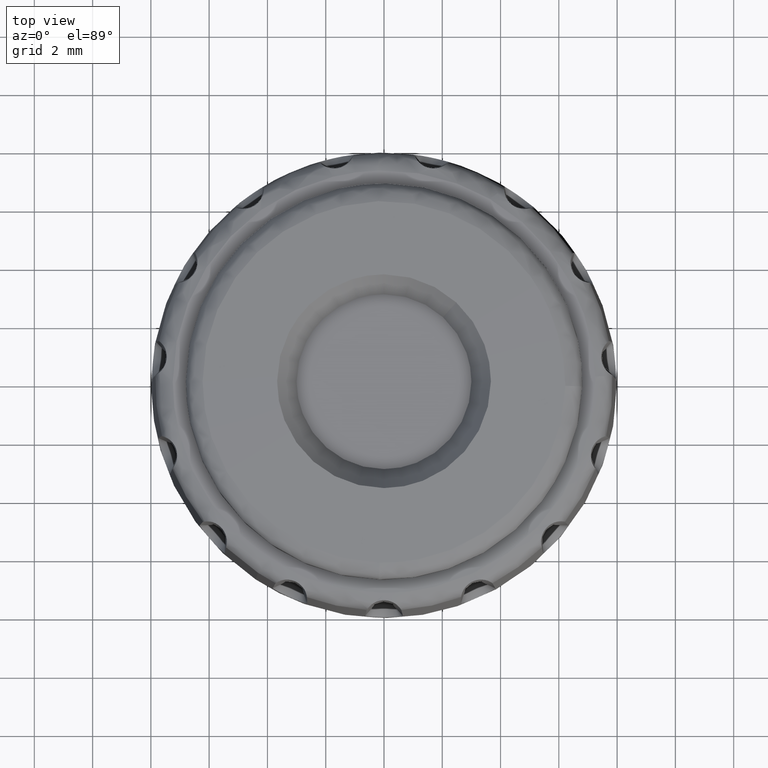
[diagram: clean part render]
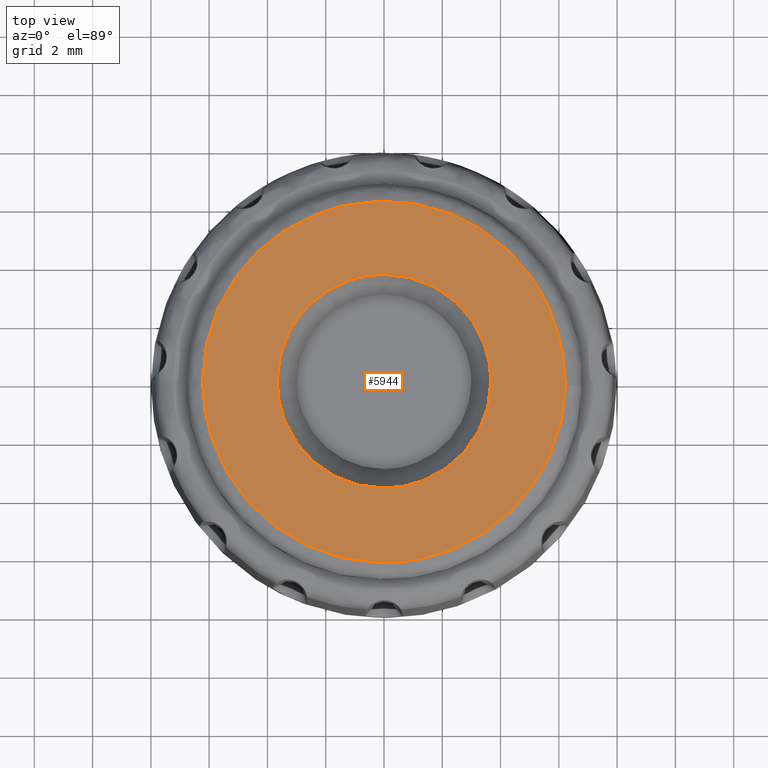
[diagram: same view with one face highlighted and labeled with its STEP entity id]
A machine part, top view. The second image highlights one B-rep face of the part: STEP entity #5944.
In plain terms, the highlighted face is a freeform B-spline surface patch.
Its self-contained STEP definition (entity closure, byte-faithful):
#855=CARTESIAN_POINT('',(-2.558729368442249,2.629239710195736,10.955126598046670));
#856=VERTEX_POINT('',#855);
#862=CARTESIAN_POINT('',(-3.668787000000000,0.0,10.955126627763660));
#863=VERTEX_POINT('',#862);
#864=CARTESIAN_POINT('',(-3.668787000000000,0.0,10.955126627763660));
#865=CARTESIAN_POINT('',(-3.668796314273598,0.183207690379415,10.955126625692920));
#866=CARTESIAN_POINT('',(-3.640142203927413,0.564888915226439,10.955126621379049));
#867=CARTESIAN_POINT('',(-3.519179570670492,1.079313527119712,10.955126615564810));
#868=CARTESIAN_POINT('',(-3.338767566305369,1.542476770300644,10.955126610329661));
#869=CARTESIAN_POINT('',(-3.056386048654440,2.068006213917218,10.955126604390150));
#870=CARTESIAN_POINT('',(-2.772138523245196,2.421649582247328,10.955126600392910));
#871=CARTESIAN_POINT('',(-2.558729368442249,2.629239710195736,10.955126598046670));
#872=B_SPLINE_CURVE_WITH_KNOTS('',3,(#864,#865,#866,#867,#868,#869,#870,#871),.UNSPECIFIED.,.F.,.U.,(4,1,1,1,1,4),(3.287222E-009,0.549623135697037,1.145049400840036,1.580163922134581,2.038185540466906,2.931323173761657),.UNSPECIFIED.);
#873=EDGE_CURVE('',#863,#856,#872,.T.);
#875=CARTESIAN_POINT('',(-0.000000253086721,-3.668786999999991,10.955126627763660));
#876=VERTEX_POINT('',#875);
#877=CARTESIAN_POINT('',(-0.000000253086721,-3.668786999999991,10.955126627763660));
#878=CARTESIAN_POINT('',(-0.150074253330359,-3.668790672883966,10.955126627763670));
#879=CARTESIAN_POINT('',(-0.465233631023567,-3.649426425733436,10.955126627763640));
#880=CARTESIAN_POINT('',(-0.908346585422596,-3.564105307968374,10.955126627763731));
#881=CARTESIAN_POINT('',(-1.430333908644830,-3.395240281615239,10.955126627763560));
#882=CARTESIAN_POINT('',(-1.914637579217418,-3.149593821998164,10.955126627763759));
#883=CARTESIAN_POINT('',(-2.404950311509681,-2.788253567985518,10.955126627763629));
#884=CARTESIAN_POINT('',(-2.821521076519567,-2.374253071393121,10.955126627763709));
#885=CARTESIAN_POINT('',(-3.155627896872490,-1.899855293302906,10.955126627763750));
#886=CARTESIAN_POINT('',(-3.426078726975972,-1.354244990284643,10.955126627763491));
#887=CARTESIAN_POINT('',(-3.617709160590268,-0.742863637697796,10.955126627763910));
#888=CARTESIAN_POINT('',(-3.668821238783093,-0.255130236077244,10.955126627763590));
#889=CARTESIAN_POINT('',(-3.668787000000000,0.0,10.955126627763660));
#890=B_SPLINE_CURVE_WITH_KNOTS('',3,(#877,#878,#879,#880,#881,#882,#883,#884,#885,#886,#887,#888,#889),.UNSPECIFIED.,.F.,.U.,(4,1,1,1,1,1,1,1,1,1,4),(0.000000012398077,0.450222670899482,0.945479919587009,1.350685525418148,2.093565757266277,2.566303774648466,3.174106146020960,3.849454175856954,4.299682986823800,4.997541529064630,5.762926041093365),.UNSPECIFIED.);
#891=EDGE_CURVE('',#876,#863,#890,.T.);
#893=CARTESIAN_POINT('',(3.668787000000000,0.0,10.955126627763660));
#894=VERTEX_POINT('',#893);
#895=CARTESIAN_POINT('',(3.668787000000000,0.0,10.955126627763660));
#896=CARTESIAN_POINT('',(3.668814323694762,-0.232618779341579,10.955126627763629));
#897=CARTESIAN_POINT('',(3.631546560145285,-0.622804844325909,10.955126627763789));
#898=CARTESIAN_POINT('',(3.500843924060500,-1.124910376948884,10.955126627763599));
#899=CARTESIAN_POINT('',(3.326404284826933,-1.573057315246687,10.955126627763461));
#900=CARTESIAN_POINT('',(3.115877764746147,-1.955554149086997,10.955126627764139));
#901=CARTESIAN_POINT('',(2.841889398146539,-2.332161507697303,10.955126627763340));
#902=CARTESIAN_POINT('',(2.502436002097874,-2.704434779173230,10.955126627763949));
#903=CARTESIAN_POINT('',(2.095374772961913,-3.028170517214256,10.955126627763510));
#904=CARTESIAN_POINT('',(1.607604879900126,-3.310443393275139,10.955126627763800));
#905=CARTESIAN_POINT('',(1.140935476101188,-3.502070886148074,10.955126627763329));
#906=CARTESIAN_POINT('',(0.577786367985983,-3.637625790877836,10.955126627764500));
#907=CARTESIAN_POINT('',(0.202602996852965,-3.668803636449066,10.955126627762221));
#908=CARTESIAN_POINT('',(-0.000000253086721,-3.668786999999991,10.955126627763660));
#909=B_SPLINE_CURVE_WITH_KNOTS('',3,(#895,#896,#897,#898,#899,#900,#901,#902,#903,#904,#905,#906,#907,#908),.UNSPECIFIED.,.F.,.U.,(4,1,1,1,1,1,1,1,1,1,1,4),(0.000000012380162,0.697851070513664,1.170593287485914,1.553289214359196,2.138586581445682,2.476263587876066,2.948995092178373,3.646847719276117,4.029545937002878,4.637356576671634,5.155119120067665,5.762926326381514),.UNSPECIFIED.);
#910=EDGE_CURVE('',#894,#876,#909,.T.);
#912=CARTESIAN_POINT('',(2.478596627620115,2.704913570443459,10.955126657378511));
#913=VERTEX_POINT('',#912);
#914=CARTESIAN_POINT('',(2.478596627620115,2.704913570443459,10.955126657378511));
#915=CARTESIAN_POINT('',(2.700568686252443,2.501623246935369,10.955126655152810));
#916=CARTESIAN_POINT('',(2.974887743093795,2.179673978551685,10.955126651627870));
#917=CARTESIAN_POINT('',(3.281793590638063,1.660984697162141,10.955126645949059));
#918=CARTESIAN_POINT('',(3.504120535305149,1.151377766319385,10.955126640369411));
#919=CARTESIAN_POINT('',(3.642096269305816,0.570292939613688,10.955126634007740));
#920=CARTESIAN_POINT('',(3.668787897011517,0.158412555311694,10.955126629497910));
#921=CARTESIAN_POINT('',(3.668787000000000,0.0,10.955126627763660));
#922=B_SPLINE_CURVE_WITH_KNOTS('',3,(#914,#915,#916,#917,#918,#919,#920,#921),.UNSPECIFIED.,.F.,.U.,(4,1,1,1,1,4),(3.693007E-009,0.902958892960242,1.259391948735823,1.805916281795649,2.566304422388210,3.041544954333785),.UNSPECIFIED.);
#923=EDGE_CURVE('',#913,#894,#922,.T.);
#1019=CARTESIAN_POINT('',(0.000000253086766,3.668786999999991,10.955126627763660));
#1020=VERTEX_POINT('',#1019);
#1021=CARTESIAN_POINT('',(0.000000253086766,3.668786999999991,10.955126627763660));
#1022=CARTESIAN_POINT('',(0.184260082535565,3.668795230222630,10.955126629965230));
#1023=CARTESIAN_POINT('',(0.574039797798683,3.639365350323447,10.955126634622429));
#1024=CARTESIAN_POINT('',(1.182741671175913,3.493847921826963,10.955126641895340));
#1025=CARTESIAN_POINT('',(1.847471641502393,3.201495027786606,10.955126649837680));
#1026=CARTESIAN_POINT('',(2.269631043293864,2.896472847193216,10.955126654881751));
#1027=CARTESIAN_POINT('',(2.478596627620115,2.704913570443459,10.955126657378511));
#1028=B_SPLINE_CURVE_WITH_KNOTS('',3,(#1021,#1022,#1023,#1024,#1025,#1026,#1027),.UNSPECIFIED.,.F.,.U.,(4,1,1,1,4),(2.757743E-009,0.552779893470970,1.169346180678266,1.870948759456739,2.721381125809309),.UNSPECIFIED.);
#1029=EDGE_CURVE('',#1020,#913,#1028,.T.);
#1031=CARTESIAN_POINT('',(-2.558729368442249,2.629239710195736,10.955126598046670));
#1032=CARTESIAN_POINT('',(-2.437189540218109,2.747530125751104,10.955126599458220));
#1033=CARTESIAN_POINT('',(-2.205871345602524,2.943328480580930,10.955126602144810));
#1034=CARTESIAN_POINT('',(-1.822600413465111,3.193804090119309,10.955126606595989));
#1035=CARTESIAN_POINT('',(-1.346224094016909,3.430622669587101,10.955126612128710));
#1036=CARTESIAN_POINT('',(-0.730013175774520,3.620200288120393,10.955126619285229));
#1037=CARTESIAN_POINT('',(-0.243341598208492,3.668812151646920,10.955126624937529));
#1038=CARTESIAN_POINT('',(0.000000253086766,3.668786999999991,10.955126627763660));
#1039=B_SPLINE_CURVE_WITH_KNOTS('',3,(#1031,#1032,#1033,#1034,#1035,#1036,#1037,#1038),.UNSPECIFIED.,.F.,.U.,(4,1,1,1,1,4),(3.152667E-009,0.508803558807011,0.906998048503054,1.371560595554881,2.101580429301773,2.831603205164525),.UNSPECIFIED.);
#1040=EDGE_CURVE('',#856,#1020,#1039,.T.);
#3651=CARTESIAN_POINT('',(-0.156432296181891,-6.222932717152220,10.870779798246550));
#3652=VERTEX_POINT('',#3651);
#3666=CARTESIAN_POINT('',(-6.224898594377520,0.0,10.870779798764360));
#3667=VERTEX_POINT('',#3666);
#3668=CARTESIAN_POINT('',(-0.156432296181891,-6.222932717152220,10.870779798246550));
#3669=CARTESIAN_POINT('',(-0.381865421837972,-6.217268365530706,10.870779798265771));
#3670=CARTESIAN_POINT('',(-0.907160127171172,-6.175434978969189,10.870779798310620));
#3671=CARTESIAN_POINT('',(-1.792395643568852,-5.990246827096621,10.870779798386179));
#3672=CARTESIAN_POINT('',(-2.660525796867491,-5.654235343281625,10.870779798460100));
#3673=CARTESIAN_POINT('',(-3.433746045338789,-5.211251594103104,10.870779798526410));
#3674=CARTESIAN_POINT('',(-4.106360415079951,-4.706283095344810,10.870779798583371));
#3675=CARTESIAN_POINT('',(-4.728077704227839,-4.083958371703569,10.870779798636830));
#3676=CARTESIAN_POINT('',(-5.310695847159289,-3.296502969275289,10.870779798686220));
#3677=CARTESIAN_POINT('',(-5.699793193868755,-2.549123252144751,10.870779798719781));
#3678=CARTESIAN_POINT('',(-6.002741147174603,-1.711823929633866,10.870779798745430));
#3679=CARTESIAN_POINT('',(-6.181343781817196,-0.914552335592250,10.870779798760610));
#3680=CARTESIAN_POINT('',(-6.224907116093082,-0.288144721075772,10.870779798764310));
#3681=CARTESIAN_POINT('',(-6.224898594377520,0.0,10.870779798764360));
#3682=B_SPLINE_CURVE_WITH_KNOTS('',3,(#3668,#3669,#3670,#3671,#3672,#3673,#3674,#3675,#3676,#3677,#3678,#3679,#3680,#3681),.UNSPECIFIED.,.F.,.U.,(4,1,1,1,1,1,1,1,1,1,1,4),(7.937627E-009,0.676514396797769,1.578543422591633,2.706079251207203,3.457768288664138,4.247044847268403,5.224233760044235,6.088673784573475,7.178625776808273,7.742392490062859,8.757177325883049,9.621613701395200),.UNSPECIFIED.);
#3683=EDGE_CURVE('',#3652,#3667,#3682,.T.);
#3685=CARTESIAN_POINT('',(6.222932735984559,-0.156432296652698,10.870779797464101));
#3686=VERTEX_POINT('',#3685);
#3687=CARTESIAN_POINT('',(-6.224898594377520,0.0,10.870779798764360));
#3688=CARTESIAN_POINT('',(-6.225398904127515,0.823861335608515,10.870759018346300));
#3689=CARTESIAN_POINT('',(-6.059618739523910,1.647591024359349,10.870768184040781));
#3690=CARTESIAN_POINT('',(-5.738479665682325,2.406383334633843,10.870870618553271));
#3691=CARTESIAN_POINT('',(-5.423934128247542,3.149596336345393,10.870970949909401));
#3692=CARTESIAN_POINT('',(-4.962859159162885,3.830601740467579,10.871112076194271));
#3693=CARTESIAN_POINT('',(-4.385520730678727,4.394938340005526,10.871233213147841));
#3694=CARTESIAN_POINT('',(-3.870945215768953,4.897925464995835,10.871341181208139));
#3695=CARTESIAN_POINT('',(-3.268844843678164,5.311196178899916,10.871373129905029));
#3696=CARTESIAN_POINT('',(-2.611807083118655,5.605344597907762,10.871082402892419));
#3697=CARTESIAN_POINT('',(-2.539175833307204,5.637860791930476,10.871050264912610));
#3698=CARTESIAN_POINT('',(-2.467229227245997,5.672013604100760,10.871106587827880));
#3699=CARTESIAN_POINT('',(-2.393437028525292,5.702006970462816,10.871082402892419));
#3700=CARTESIAN_POINT('',(-2.211463644114010,5.775971352625335,10.871022762244300));
#3701=CARTESIAN_POINT('',(-2.028055449837362,5.847030928179488,10.871126937962460));
#3702=CARTESIAN_POINT('',(-1.839625787033358,5.903998752066638,10.871082402892419));
#3703=CARTESIAN_POINT('',(-1.655495533247107,5.959666738273788,10.871038883981290));
#3704=CARTESIAN_POINT('',(-1.469866080658166,6.011081066176997,10.871114893813280));
#3705=CARTESIAN_POINT('',(-1.281066984348730,6.049817491654949,10.871082402892419));
#3706=CARTESIAN_POINT('',(-1.145764281813513,6.077577916128225,10.871059118303210));
#3707=CARTESIAN_POINT('',(-1.009919044471949,6.103168770838756,10.871099814068740));
#3708=CARTESIAN_POINT('',(-0.872916899518531,6.122045441456430,10.871082402892419));
#3709=CARTESIAN_POINT('',(-0.524140007210951,6.170101232972574,10.871038077922391));
#3710=CARTESIAN_POINT('',(-0.171309128645744,6.192914208798866,10.871115756841290));
#3711=CARTESIAN_POINT('',(0.181596994019451,6.181298151075194,10.871082402892410));
#3712=CARTESIAN_POINT('',(0.574664343168258,6.168360169204772,10.871045253215980));
#3713=CARTESIAN_POINT('',(0.967228852590505,6.121658761611919,10.871111220334550));
#3714=CARTESIAN_POINT('',(1.351766569730231,6.034413926942889,10.871082402892419));
#3715=CARTESIAN_POINT('',(1.599143221551096,5.978288522003100,10.871063864366731));
#3716=CARTESIAN_POINT('',(1.843666088678940,5.908750273271038,10.871096479017959));
#3717=CARTESIAN_POINT('',(2.082616957156176,5.822725385117186,10.871082402892419));
#3718=CARTESIAN_POINT('',(2.645043917726482,5.620245617263232,10.871049271426720));
#3719=CARTESIAN_POINT('',(3.179722403249784,5.338815033916257,10.871113023397610));
#3720=CARTESIAN_POINT('',(3.661231035688449,4.983654442679008,10.871082402892419));
#3721=CARTESIAN_POINT('',(4.058647928886335,4.690519887560080,10.871057130020411));
#3722=CARTESIAN_POINT('',(4.422269599314094,4.351793725663953,10.871103996153090));
#3723=CARTESIAN_POINT('',(4.738494733846366,3.973423203993350,10.871082402892419));
#3724=CARTESIAN_POINT('',(5.337449699866712,3.256760047898820,10.871041503579571));
#3725=CARTESIAN_POINT('',(5.773232963556025,2.408323381337636,10.871146548846930));
#3726=CARTESIAN_POINT('',(5.997063695880628,1.508857623592471,10.871082402892419));
#3727=CARTESIAN_POINT('',(6.006490133944387,1.470977399693813,10.871079701440920));
#3728=CARTESIAN_POINT('',(6.017871289696509,1.433575580109356,10.871136802729270));
#3729=CARTESIAN_POINT('',(6.027000458854324,1.395610011158590,10.871144224514561));
#3730=CARTESIAN_POINT('',(6.054089196223797,1.282955802586986,10.871166246977840));
#3731=CARTESIAN_POINT('',(6.082652972106219,1.170607407410183,10.871259865008550));
#3732=CARTESIAN_POINT('',(6.103902974979558,1.056634182159524,10.871273136272601));
#3733=CARTESIAN_POINT('',(6.124774495833042,0.944690924469784,10.871286171163270));
#3734=CARTESIAN_POINT('',(6.146008157470676,0.832780108661892,10.871298485580720));
#3735=CARTESIAN_POINT('',(6.161068788054248,0.719855575648512,10.871289274310669));
#3736=CARTESIAN_POINT('',(6.172584859452885,0.633508129728271,10.871282230937350));
#3737=CARTESIAN_POINT('',(6.184265603400363,0.547167390835368,10.871247994244561));
#3738=CARTESIAN_POINT('',(6.192345353752497,0.460407943239267,10.871222434215660));
#3739=CARTESIAN_POINT('',(6.211442131842343,0.255348894910800,10.871162022175850));
#3740=CARTESIAN_POINT('',(6.223893542559169,0.049606574740844,10.870954962601740));
#3741=CARTESIAN_POINT('',(6.222932735984559,-0.156432296652698,10.870779797464101));
#3742=B_SPLINE_CURVE_WITH_KNOTS('',3,(#3687,#3688,#3689,#3690,#3691,#3692,#3693,#3694,#3695,#3696,#3697,#3698,#3699,#3700,#3701,#3702,#3703,#3704,#3705,#3706,#3707,#3708,#3709,#3710,#3711,#3712,#3713,#3714,#3715,#3716,#3717,#3718,#3719,#3720,#3721,#3722,#3723,#3724,#3725,#3726,#3727,#3728,#3729,#3730,#3731,#3732,#3733,#3734,#3735,#3736,#3737,#3738,#3739,#3740,#3741),.UNSPECIFIED.,.F.,.U.,(4,3,3,3,3,3,3,3,3,3,3,3,3,3,3,3,3,3,4),(0.0,2.471584463349545,4.892423055302514,7.050090384391162,7.288606470065738,7.876793027712728,8.451558903326772,8.863464351052764,9.912083714138502,11.080037475329719,11.831392877016061,13.599884188939420,15.059522242098440,17.824190084915461,17.940621684439449,18.286106028796588,18.625436980457248,18.884905496427219,19.498168586848209),.UNSPECIFIED.);
#3743=EDGE_CURVE('',#3667,#3686,#3742,.T.);
#3784=CARTESIAN_POINT('',(6.222932735984559,-0.156432296652698,10.870779797464101));
#3785=CARTESIAN_POINT('',(6.213062111844324,-0.550999798077837,10.870779797572350));
#3786=CARTESIAN_POINT('',(6.134740579122760,-1.198538468107063,10.870779797740999));
#3787=CARTESIAN_POINT('',(5.873384442720381,-2.118837351722749,10.870779797959740));
#3788=CARTESIAN_POINT('',(5.577083611110554,-2.797416583258023,10.870779798106300));
#3789=CARTESIAN_POINT('',(5.198093328514926,-3.446785220478011,10.870779798232920));
#3790=CARTESIAN_POINT('',(4.720916702685797,-4.093586345387476,10.870779798345200));
#3791=CARTESIAN_POINT('',(4.069936830473305,-4.743789842853108,10.870779798433681));
#3792=CARTESIAN_POINT('',(3.326472024868040,-5.283958242974546,10.870779798478409));
#3793=CARTESIAN_POINT('',(2.517419043521153,-5.719004342027954,10.870779798484881));
#3794=CARTESIAN_POINT('',(1.699082856950405,-6.011266525889949,10.870779798450290));
#3795=CARTESIAN_POINT('',(0.773910322168934,-6.197660953026716,10.870779798370990));
#3796=CARTESIAN_POINT('',(0.187218274288864,-6.231596666143975,10.870779798297921));
#3797=CARTESIAN_POINT('',(-0.156432296181891,-6.222932717152220,10.870779798246550));
#3798=B_SPLINE_CURVE_WITH_KNOTS('',3,(#3784,#3785,#3786,#3787,#3788,#3789,#3790,#3791,#3792,#3793,#3794,#3795,#3796,#3797),.UNSPECIFIED.,.F.,.U.,(4,1,1,1,1,1,1,1,1,1,1,4),(7.706891E-009,1.184062082181676,1.947973161691716,2.864668579843094,3.399406749304198,4.201512163604307,5.270981268771442,6.149484052235252,6.951591682390548,8.021070023279100,8.746786364715707,9.778063236832447),.UNSPECIFIED.);
#3799=EDGE_CURVE('',#3686,#3652,#3798,.T.);
#5907=CARTESIAN_POINT('',(-6.842489738199765,-6.838479598777727,10.687726721196871));
#5908=CARTESIAN_POINT('',(-3.423027446839479,-6.842042664846324,10.843873589054040));
#5909=CARTESIAN_POINT('',(3.422045249236381,-6.842042664846324,10.843873589054040));
#5910=CARTESIAN_POINT('',(6.840528409987410,-6.838481642180391,10.687816270736281));
#5911=CARTESIAN_POINT('',(-6.846050713908185,-3.421019243762587,10.843690523233509));
#5912=CARTESIAN_POINT('',(-3.424809791042303,-3.422802632057560,10.999999999999940));
#5913=CARTESIAN_POINT('',(3.423827082016428,-3.422802632057560,10.999999999999940));
#5914=CARTESIAN_POINT('',(6.844088366043639,-3.421020266527625,10.843780166004116));
#5915=CARTESIAN_POINT('',(-6.846050713908185,3.401518505117692,10.843690523233509));
#5916=CARTESIAN_POINT('',(-3.424809791042303,3.403291727615116,10.999999999999940));
#5917=CARTESIAN_POINT('',(3.423827082016428,3.403291727615116,10.999999999999940));
#5918=CARTESIAN_POINT('',(6.844088366043639,3.401519522052692,10.843780166004116));
#5919=CARTESIAN_POINT('',(-6.842530198732494,6.799538614439598,10.689498813744990));
#5920=CARTESIAN_POINT('',(-3.423047698192625,6.803081411972666,10.845647528722219));
#5921=CARTESIAN_POINT('',(3.422065494778639,6.803081411972666,10.845647528722219));
#5922=CARTESIAN_POINT('',(6.840568858934635,6.799540646218341,10.689588364343438));
#5930=(BOUNDED_SURFACE()B_SPLINE_SURFACE(2,2,((#5907,#5911,#5915,#5919),(#5908,#5912,#5916,#5920),(#5909,#5913,#5917,#5921),(#5910,#5914,#5918,#5922)),.UNSPECIFIED.,.F.,.F.,.U.)B_SPLINE_SURFACE_WITH_KNOTS((3,1,3),(3,1,3),(59.045757293701172,65.726838369230023,72.406002386856073),(59.049672837257383,65.726838369230023,72.365942244529720),.UNSPECIFIED.)GEOMETRIC_REPRESENTATION_ITEM()RATIONAL_B_SPLINE_SURFACE(((1.001041995553904,1.000521303204659,1.000521303204659,1.001036076297248),(1.000520692349245,1.0,1.0,1.000514773092589),(1.000520692349245,1.0,1.0,1.000514773092589),(1.001041696433136,1.000521004083891,1.000521004083891,1.001035777176480)))REPRESENTATION_ITEM('')SURFACE());
#5931=ORIENTED_EDGE('',*,*,#3683,.F.);
#5932=ORIENTED_EDGE('',*,*,#3799,.F.);
#5933=ORIENTED_EDGE('',*,*,#3743,.F.);
#5934=EDGE_LOOP('',(#5931,#5932,#5933));
#5935=FACE_OUTER_BOUND('',#5934,.T.);
#5936=ORIENTED_EDGE('',*,*,#910,.T.);
#5937=ORIENTED_EDGE('',*,*,#891,.T.);
#5938=ORIENTED_EDGE('',*,*,#873,.T.);
#5939=ORIENTED_EDGE('',*,*,#1040,.T.);
#5940=ORIENTED_EDGE('',*,*,#1029,.T.);
#5941=ORIENTED_EDGE('',*,*,#923,.T.);
#5942=EDGE_LOOP('',(#5936,#5937,#5938,#5939,#5940,#5941));
#5943=FACE_BOUND('',#5942,.T.);
#5944=ADVANCED_FACE('',(#5935,#5943),#5930,.T.);